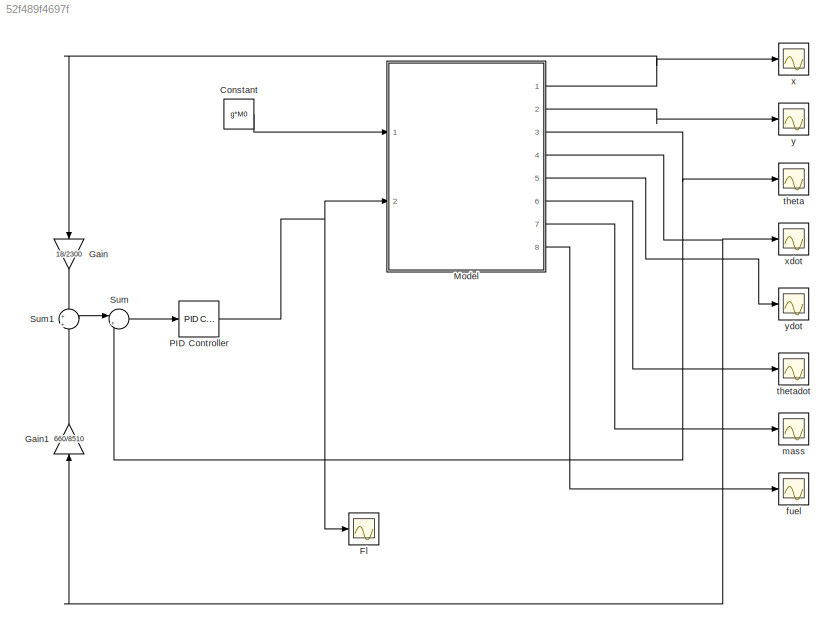
MODEL slx_52f489f4697f
KIND model
CONFIG AbsTol = auto
CONFIG FixedStep = auto
CONFIG MaxStep = auto
CONFIG MinStep = auto
CONFIG RelTol = 1e-3
CONFIG SampleTimeConstraint = Unconstrained
CONFIG Solver = ode45
CONFIG SolverMode = Auto
CONFIG SolverName = ode45
CONFIG StartTime = 0.0
CONFIG StopTime = 500.0
BLOCK [Constant] Constant
  Value = g*M0
BLOCK [Scope] Fl
  Floating = off
  NumInputPorts = 1
  Ports = [1]
  SaveName = ScopeData8
BLOCK [Gain] Gain
  Gain = 18/2300
  OutDataTypeStr = Inherit: Inherit via internal rule
  ParamDataTypeStr = Inherit: Inherit via internal rule
  SaturateOnIntegerOverflow = off
BLOCK [Gain] Gain1
  Gain = 660/8510
  OutDataTypeStr = Inherit: Inherit via internal rule
  ParamDataTypeStr = Inherit: Inherit via internal rule
  SaturateOnIntegerOverflow = off
BLOCK [ModelReference] Model
  CopyOfModelName = DinamicaCompleta.slx
  DefaultDataLogging = on
  ModelNameDialog = DinamicaCompleta.slx
  ModelReferenceVersion = 1.2
  Ports = [2, 8]
BLOCK [Reference] PID Controller  REF=simulink/Continuous/PID Controller
  AntiWindupMode = none
  Controller = PID
  ControllerParametersSource = internal
  D = 8510
  DGainOutDataTypeStr = Inherit: Inherit via internal rule
  DOutDataTypeStr = Inherit: Inherit via internal rule
  DOutMax = []
  DOutMin = []
  DParamDataTypeStr = Inherit: Inherit via internal rule
  DParamMax = []
  DParamMin = []
  DProdOutDataTypeStr = Inherit: Inherit via internal rule
  DifferentiatorICPrevScaledInput = 0
  DifferentiatorOutDataTypeStr = Inherit: Inherit via internal rule
  DifferentiatorOutMax = []
  DifferentiatorOutMin = []
  ExternalReset = none
  FilterContinuousStateAttributes = ''
  FilterMethod = Forward Euler
  FilterOutDataTypeStr = Inherit: Inherit via internal rule
  FilterOutMax = []
  FilterOutMin = []
  FilterRTWStateStorageClass = Auto
  FilterStateMustResolveToSignalObject = off
  Form = Parallel
  I = 0
  IGainOutDataTypeStr = Inherit: Inherit via internal rule
  IOutDataTypeStr = Inherit: Inherit via internal rule
  IOutMax = []
  IOutMin = []
  IParamDataTypeStr = Inherit: Inherit via internal rule
  IParamMax = []
  IParamMin = []
  IProdOutDataTypeStr = Inherit: Inherit via internal rule
  IgnoreLimit = off
  InitialConditionForFilter = 0
  InitialConditionForIntegrator = 0
  InitialConditionSource = internal
  IntegratorContinuousStateAttributes = ''
  IntegratorMethod = Forward Euler
  IntegratorOutDataTypeStr = Inherit: Inherit via internal rule
  IntegratorOutMax = []
  IntegratorOutMin = []
  IntegratorRTWStateStorageClass = Auto
  IntegratorStateMustResolveToSignalObject = off
  Kb = 1
  KbOutDataTypeStr = Inherit: Inherit via internal rule
  KbOutMax = []
  KbOutMin = []
  KbParamDataTypeStr = Inherit: Inherit via internal rule
  KbParamMax = []
  KbParamMin = []
  Kt = 1
  KtOutDataTypeStr = Inherit: Inherit via internal rule
  KtOutMax = []
  KtOutMin = []
  KtParamDataTypeStr = Inherit: Inherit via internal rule
  KtParamMax = []
  KtParamMin = []
  LimitOutput = off
  LinearizeAsGain = on
  LockScale = off
  LowerSaturationLimit = -inf
  N = 50
  NGainOutDataTypeStr = Inherit: Inherit via internal rule
  NOutDataTypeStr = Inherit: Inherit via internal rule
  NOutMax = []
  NOutMin = []
  NParamDataTypeStr = Inherit: Inherit via internal rule
  NParamMax = []
  NParamMin = []
  NProdOutDataTypeStr = Inherit: Inherit via internal rule
  P = 2003
  PGainOutDataTypeStr = Inherit: Inherit via internal rule
  POutDataTypeStr = Inherit: Inherit via internal rule
  POutMax = []
  POutMin = []
  PParamDataTypeStr = Inherit: Inherit via internal rule
  PParamMax = []
  PParamMin = []
  PProdOutDataTypeStr = Inherit: Inherit via internal rule
  Ports = [1, 1]
  RndMeth = Floor
  SampleTime = -1
  SaturateOnIntegerOverflow = off
  SaturationOutDataTypeStr = Inherit: Same as input
  SaturationOutMax = []
  SaturationOutMin = []
  SourceBlock = simulink/Continuous/PID Controller
  SourceType = PID 1dof
  SumAccumDataTypeStr = Inherit: Inherit via internal rule
  SumDAccumDataTypeStr = Inherit: Inherit via internal rule
  SumDOutDataTypeStr = Inherit: Inherit via internal rule
  SumDOutMax = []
  SumDOutMin = []
  SumI1AccumDataTypeStr = Inherit: Inherit via internal rule
  SumI1OutDataTypeStr = Inherit: Inherit via internal rule
  SumI1OutMax = []
  SumI1OutMin = []
  SumI2AccumDataTypeStr = Inherit: Inherit via internal rule
  SumI2OutDataTypeStr = Inherit: Inherit via internal rule
  SumI2OutMax = []
  SumI2OutMin = []
  SumI3AccumDataTypeStr = Inherit: Inherit via internal rule
  SumI3OutDataTypeStr = Inherit: Inherit via internal rule
  SumI3OutMax = []
  SumI3OutMin = []
  SumOutDataTypeStr = Inherit: Inherit via internal rule
  SumOutMax = []
  SumOutMin = []
  TimeDomain = Continuous-time
  TrackingMode = off
  UpperSaturationLimit = inf
  UseFilter = on
  ZeroCross = on
BLOCK [Sum] Sum
  IconShape = round
  InputSameDT = off
  Inputs = |+-
  OutDataTypeStr = Inherit: Inherit via internal rule
  Ports = [2, 1]
  SaturateOnIntegerOverflow = off
BLOCK [Sum] Sum1
  IconShape = round
  InputSameDT = off
  Inputs = +|+
  OutDataTypeStr = Inherit: Inherit via internal rule
  Ports = [2, 1]
  SaturateOnIntegerOverflow = off
BLOCK [Scope] fuel
  Floating = off
  NumInputPorts = 1
  Ports = [1]
  SaveName = ScopeData7
BLOCK [Scope] mass
  Floating = off
  NumInputPorts = 1
  Ports = [1]
  SaveName = ScopeData6
BLOCK [Scope] theta
  Floating = off
  NumInputPorts = 1
  Ports = [1]
  SaveName = ScopeData2
BLOCK [Scope] thetadot
  Floating = off
  NumInputPorts = 1
  Ports = [1]
  SaveName = ScopeData5
BLOCK [Scope] x
  Floating = off
  LimitDataPoints = off
  NumInputPorts = 1
  Ports = [1]
BLOCK [Scope] xdot
  Floating = off
  NumInputPorts = 1
  Ports = [1]
  SaveName = ScopeData3
BLOCK [Scope] y
  Floating = off
  NumInputPorts = 1
  Ports = [1]
  SaveName = ScopeData1
BLOCK [Scope] ydot
  Floating = off
  NumInputPorts = 1
  Ports = [1]
  SaveName = ScopeData4
LINE Constant:1 -> Model:1
LINE Gain1:1 -> Sum1:2
LINE Gain:1 -> Sum1:1
NET Model:1 -> Gain:1, x:1
LINE Model:2 -> y:1
NET Model:3 -> Sum:2, theta:1
NET Model:4 -> Gain1:1, xdot:1
LINE Model:5 -> ydot:1
LINE Model:6 -> thetadot:1
LINE Model:7 -> mass:1
LINE Model:8 -> fuel:1
NET PID Controller:1 -> Fl:1, Model:2
LINE Sum1:1 -> Sum:1
LINE Sum:1 -> PID Controller:1
note: NET lines group one-source signal fan-out (src -> all destinations, sorted); 1:1 wires keep LINE
